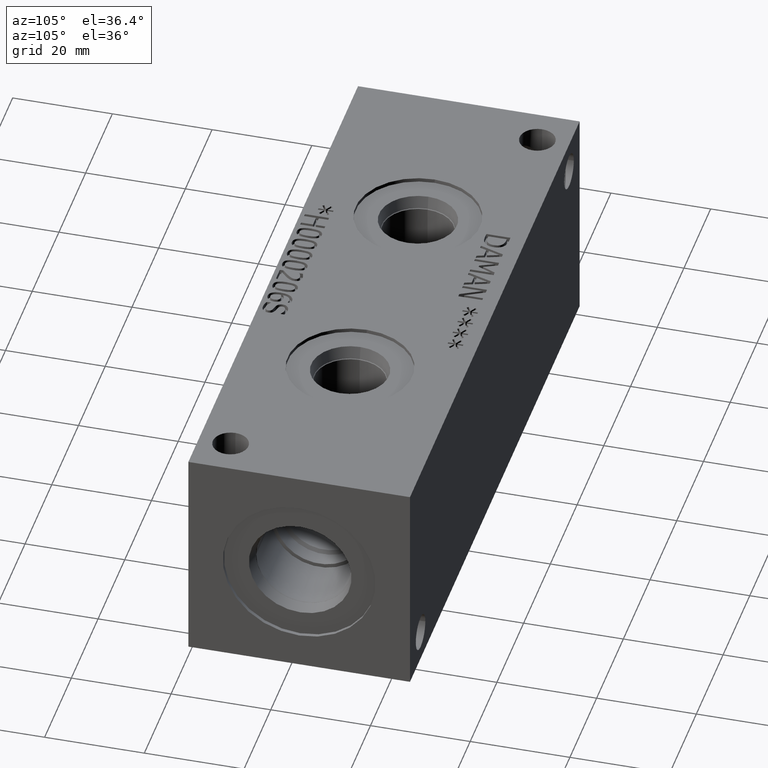
[diagram: clean part render]
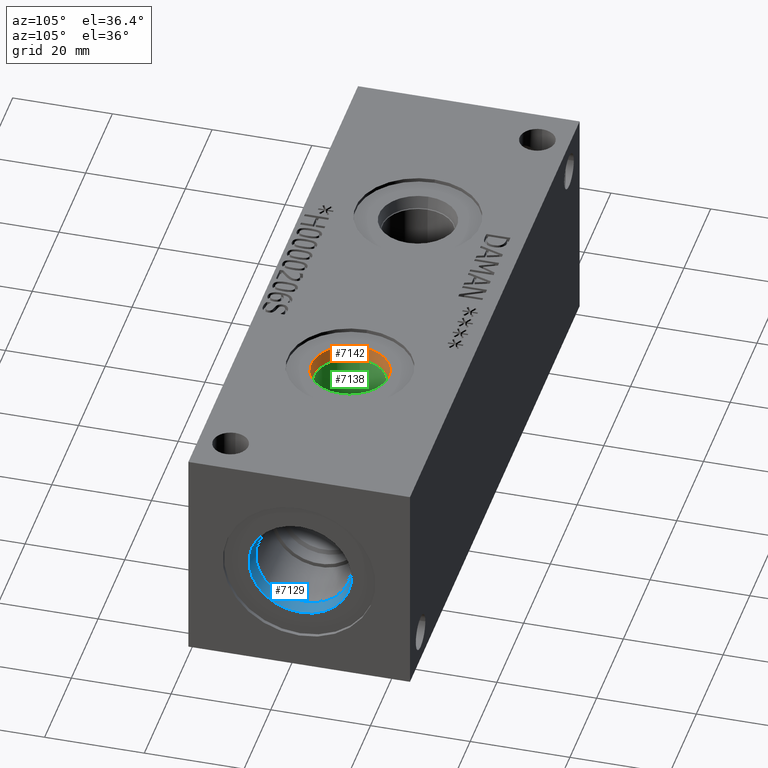
[diagram: same view with three faces highlighted in distinct colors, each labeled with its STEP entity id]
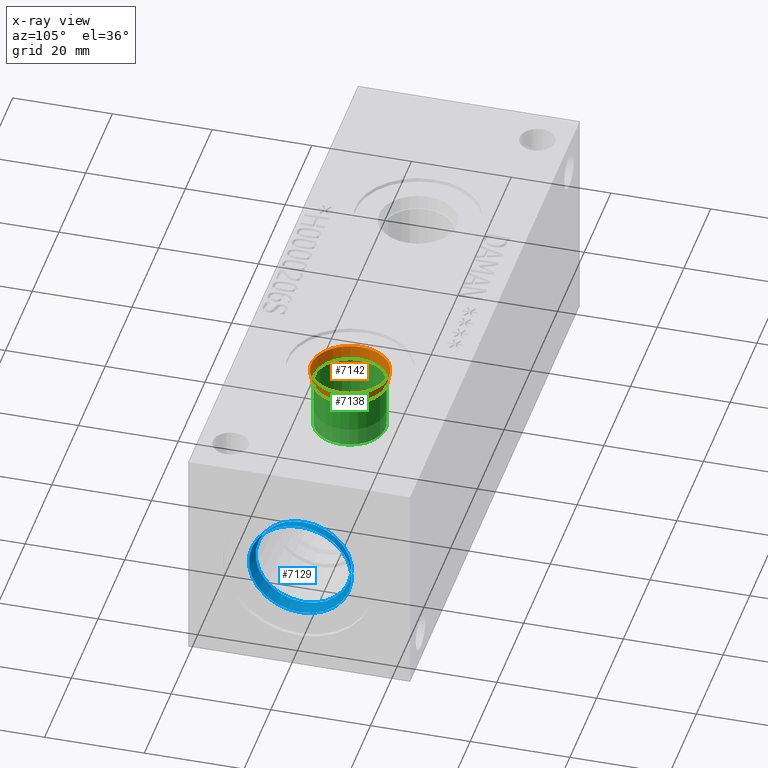
[diagram: x-ray of the same camera — body ghosted, the three highlighted faces saturated]
A machine part, auxiliary view with three faces highlighted in distinct colors.
The next image is the same camera in x-ray (body ghosted, the three faces saturated) — at least one of them is partly hidden behind the body in this view.
Their STEP definitions:

[orange] entity #7142 — the highlighted conical surface has half-angle 12.038 deg.
#24=CONICAL_SURFACE('',#7484,7.5311,0.210103251840967);
#133=CIRCLE('',#7482,7.79780000000001);
#134=CIRCLE('',#7483,7.79780000000001);
#135=CIRCLE('',#7485,7.2644);
#136=CIRCLE('',#7486,7.2644);
#891=FACE_OUTER_BOUND('',#1294,.T.);
#1294=EDGE_LOOP('',(#6185,#6186,#6187,#6188,#6189,#6190));
#1969=LINE('',#12308,#2634);
#2634=VECTOR('',#8790,7.5311);
#3290=VERTEX_POINT('',#12302);
#3291=VERTEX_POINT('',#12303);
#3292=VERTEX_POINT('',#12307);
#3293=VERTEX_POINT('',#12309);
#4266=EDGE_CURVE('',#3290,#3291,#133,.T.);
#4267=EDGE_CURVE('',#3291,#3290,#134,.T.);
#4268=EDGE_CURVE('',#3291,#3292,#1969,.T.);
#4269=EDGE_CURVE('',#3292,#3293,#135,.T.);
#4270=EDGE_CURVE('',#3293,#3292,#136,.T.);
#6185=ORIENTED_EDGE('',*,*,#4266,.F.);
#6186=ORIENTED_EDGE('',*,*,#4267,.F.);
#6187=ORIENTED_EDGE('',*,*,#4268,.T.);
#6188=ORIENTED_EDGE('',*,*,#4269,.T.);
#6189=ORIENTED_EDGE('',*,*,#4270,.T.);
#6190=ORIENTED_EDGE('',*,*,#4268,.F.);
#7142=ADVANCED_FACE('',(#891),#24,.F.);
#7482=AXIS2_PLACEMENT_3D('',#12304,#8784,#8785);
#7483=AXIS2_PLACEMENT_3D('',#12305,#8786,#8787);
#7484=AXIS2_PLACEMENT_3D('',#12306,#8788,#8789);
#7485=AXIS2_PLACEMENT_3D('',#12310,#8791,#8792);
#7486=AXIS2_PLACEMENT_3D('',#12311,#8793,#8794);
#8784=DIRECTION('center_axis',(0.,0.,-1.));
#8785=DIRECTION('ref_axis',(1.,0.,0.));
#8786=DIRECTION('center_axis',(0.,0.,-1.));
#8787=DIRECTION('ref_axis',(1.,0.,0.));
#8788=DIRECTION('center_axis',(0.,0.,1.));
#8789=DIRECTION('ref_axis',(1.,0.,0.));
#8790=DIRECTION('',(0.208560882227198,-2.55413416846886E-17,-0.978009385642394));
#8791=DIRECTION('center_axis',(0.,0.,-1.));
#8792=DIRECTION('ref_axis',(1.,0.,0.));
#8793=DIRECTION('center_axis',(0.,0.,-1.));
#8794=DIRECTION('ref_axis',(1.,0.,0.));
#12302=CARTESIAN_POINT('',(96.6978,22.225,43.6626));
#12303=CARTESIAN_POINT('',(81.1022,22.225,43.6626));
#12304=CARTESIAN_POINT('Origin',(88.9,22.225,43.6626));
#12305=CARTESIAN_POINT('Origin',(88.9,22.225,43.6626));
#12306=CARTESIAN_POINT('Origin',(88.9,22.225,42.4119575));
#12307=CARTESIAN_POINT('',(81.6356,22.225,41.161315));
#12308=CARTESIAN_POINT('',(81.3689,22.225,42.4119575));
#12309=CARTESIAN_POINT('',(96.1644,22.225,41.161315));
#12310=CARTESIAN_POINT('Origin',(88.9,22.225,41.161315));
#12311=CARTESIAN_POINT('Origin',(88.9,22.225,41.161315));

[blue] entity #7129 — the highlighted conical surface has half-angle 15 deg.
#20=CONICAL_SURFACE('',#7452,9.96315,0.261799387657294);
#114=CIRCLE('',#7450,10.2997);
#115=CIRCLE('',#7451,10.2997);
#116=CIRCLE('',#7453,9.6266);
#117=CIRCLE('',#7454,9.6266);
#878=FACE_OUTER_BOUND('',#1279,.T.);
#1279=EDGE_LOOP('',(#6120,#6121,#6122,#6123,#6124,#6125));
#1958=LINE('',#12245,#2623);
#2623=VECTOR('',#8715,9.96315);
#3270=VERTEX_POINT('',#12239);
#3271=VERTEX_POINT('',#12240);
#3272=VERTEX_POINT('',#12244);
#3273=VERTEX_POINT('',#12246);
#4236=EDGE_CURVE('',#3270,#3271,#114,.T.);
#4237=EDGE_CURVE('',#3271,#3270,#115,.T.);
#4238=EDGE_CURVE('',#3271,#3272,#1958,.T.);
#4239=EDGE_CURVE('',#3272,#3273,#116,.T.);
#4240=EDGE_CURVE('',#3273,#3272,#117,.T.);
#6120=ORIENTED_EDGE('',*,*,#4236,.F.);
#6121=ORIENTED_EDGE('',*,*,#4237,.F.);
#6122=ORIENTED_EDGE('',*,*,#4238,.T.);
#6123=ORIENTED_EDGE('',*,*,#4239,.T.);
#6124=ORIENTED_EDGE('',*,*,#4240,.T.);
#6125=ORIENTED_EDGE('',*,*,#4238,.F.);
#7129=ADVANCED_FACE('',(#878),#20,.F.);
#7450=AXIS2_PLACEMENT_3D('',#12241,#8709,#8710);
#7451=AXIS2_PLACEMENT_3D('',#12242,#8711,#8712);
#7452=AXIS2_PLACEMENT_3D('',#12243,#8713,#8714);
#7453=AXIS2_PLACEMENT_3D('',#12247,#8716,#8717);
#7454=AXIS2_PLACEMENT_3D('',#12248,#8718,#8719);
#8709=DIRECTION('center_axis',(-1.,0.,0.));
#8710=DIRECTION('ref_axis',(0.,0.,1.));
#8711=DIRECTION('center_axis',(-1.,0.,0.));
#8712=DIRECTION('ref_axis',(0.,0.,1.));
#8713=DIRECTION('center_axis',(1.,0.,0.));
#8714=DIRECTION('ref_axis',(0.,0.,-1.));
#8715=DIRECTION('',(-0.965925826325783,-3.16961914975373E-17,-0.258819044965499));
#8716=DIRECTION('center_axis',(-1.,0.,0.));
#8717=DIRECTION('ref_axis',(0.,0.,1.));
#8718=DIRECTION('center_axis',(-1.,0.,0.));
#8719=DIRECTION('ref_axis',(0.,0.,1.));
#12239=CARTESIAN_POINT('',(126.2126,22.225,11.9253));
#12240=CARTESIAN_POINT('',(126.2126,22.225,32.5247));
#12241=CARTESIAN_POINT('Origin',(126.2126,22.225,22.225));
#12242=CARTESIAN_POINT('Origin',(126.2126,22.225,22.225));
#12243=CARTESIAN_POINT('Origin',(124.9565783,22.225,22.225));
#12244=CARTESIAN_POINT('',(123.7005566,22.225,31.8516));
#12245=CARTESIAN_POINT('',(124.9565783,22.225,32.18815));
#12246=CARTESIAN_POINT('',(123.7005566,22.225,12.5984));
#12247=CARTESIAN_POINT('Origin',(123.7005566,22.225,22.225));
#12248=CARTESIAN_POINT('Origin',(123.7005566,22.225,22.225));

[green] entity #7138 — the highlighted cylindrical surface (bore or boss wall) has radius 7.1374 mm, axis along (0, 0, 1).
#57=CYLINDRICAL_SURFACE('',#7475,7.1374);
#127=CIRCLE('',#7472,7.1374);
#128=CIRCLE('',#7473,7.1374);
#130=CIRCLE('',#7476,7.1374);
#887=FACE_OUTER_BOUND('',#1289,.T.);
#1289=EDGE_LOOP('',(#6165,#6166,#6167,#6168,#6169));
#1966=LINE('',#12292,#2631);
#2631=VECTOR('',#8771,7.1374);
#3284=VERTEX_POINT('',#12283);
#3285=VERTEX_POINT('',#12284);
#3287=VERTEX_POINT('',#12290);
#4257=EDGE_CURVE('',#3284,#3285,#127,.T.);
#4258=EDGE_CURVE('',#3285,#3284,#128,.T.);
#4260=EDGE_CURVE('',#3287,#3287,#130,.T.);
#4261=EDGE_CURVE('',#3287,#3285,#1966,.T.);
#6165=ORIENTED_EDGE('',*,*,#4260,.F.);
#6166=ORIENTED_EDGE('',*,*,#4261,.T.);
#6167=ORIENTED_EDGE('',*,*,#4257,.F.);
#6168=ORIENTED_EDGE('',*,*,#4258,.F.);
#6169=ORIENTED_EDGE('',*,*,#4261,.F.);
#7138=ADVANCED_FACE('',(#887),#57,.F.);
#7472=AXIS2_PLACEMENT_3D('',#12285,#8761,#8762);
#7473=AXIS2_PLACEMENT_3D('',#12286,#8763,#8764);
#7475=AXIS2_PLACEMENT_3D('',#12289,#8767,#8768);
#7476=AXIS2_PLACEMENT_3D('',#12291,#8769,#8770);
#8761=DIRECTION('center_axis',(0.,0.,1.));
#8762=DIRECTION('ref_axis',(1.,0.,0.));
#8763=DIRECTION('center_axis',(0.,0.,1.));
#8764=DIRECTION('ref_axis',(1.,0.,0.));
#8767=DIRECTION('center_axis',(0.,0.,1.));
#8768=DIRECTION('ref_axis',(1.,0.,0.));
#8769=DIRECTION('center_axis',(0.,0.,-1.));
#8770=DIRECTION('ref_axis',(1.,0.,0.));
#8771=DIRECTION('',(0.,0.,-1.));
#12283=CARTESIAN_POINT('',(96.0374,22.225,30.9626));
#12284=CARTESIAN_POINT('',(81.7626,22.225,30.9626));
#12285=CARTESIAN_POINT('Origin',(88.9,22.225,30.9626));
#12286=CARTESIAN_POINT('Origin',(88.9,22.225,30.9626));
#12289=CARTESIAN_POINT('Origin',(88.9,22.225,37.7063));
#12290=CARTESIAN_POINT('',(81.7626,22.225,41.021));
#12291=CARTESIAN_POINT('Origin',(88.9,22.225,41.021));
#12292=CARTESIAN_POINT('',(81.7626,22.225,37.7063));